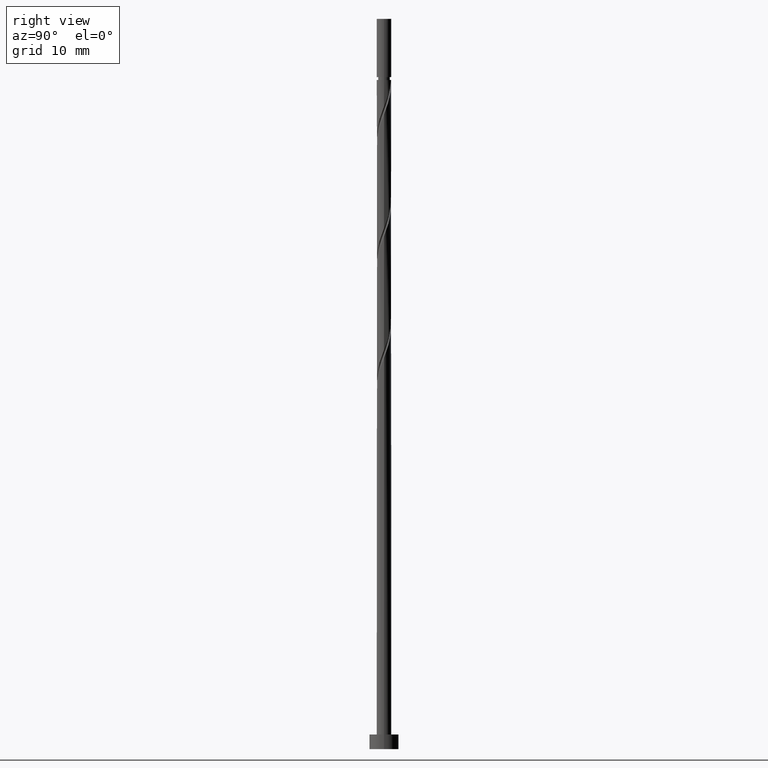
[diagram: clean part render]
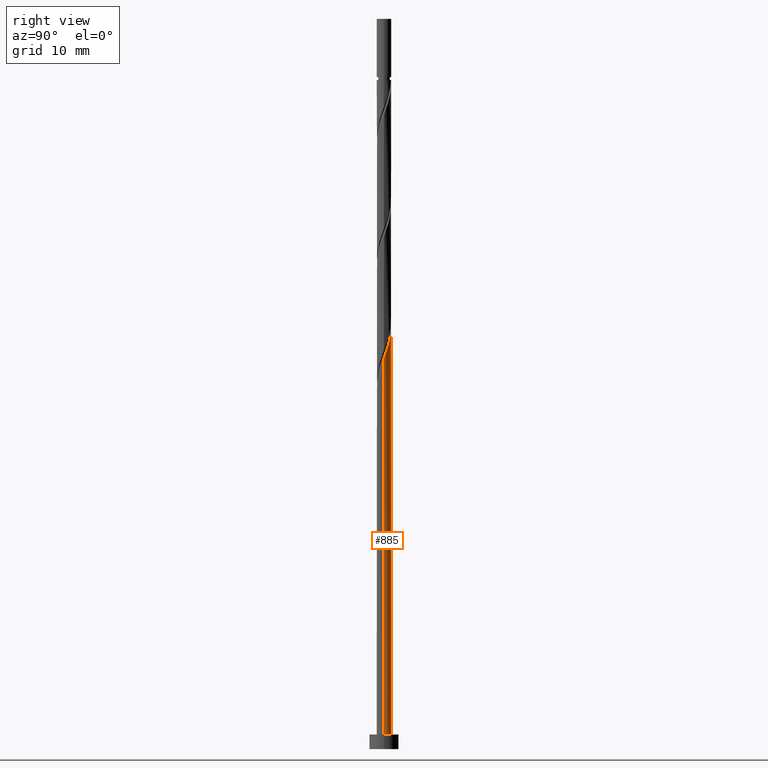
[diagram: same view with one face highlighted and labeled with its STEP entity id]
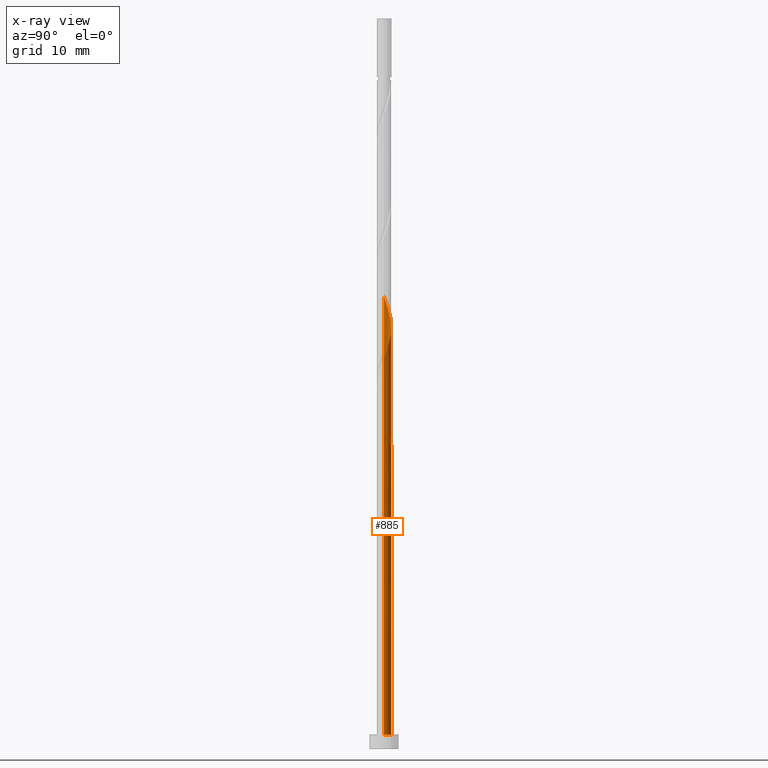
[diagram: x-ray of the same camera — body ghosted, the highlighted face saturated]
A machine part, right view. The second image highlights one B-rep face of the part: STEP entity #885.
The next image is the same camera in x-ray: the body ghosted, the highlighted face saturated — about 0% of this face is hidden behind the body in this view.
In plain terms, the highlighted cylindrical surface (edge-blend (fillet) strip) has radius 1 mm, axis along (-0, -0, -1).
Its self-contained STEP definition (entity closure, byte-faithful):
#6 = CARTESIAN_POINT ( 'NONE',  ( -1.000000000000002887, 0.1630543718204529036, 61.49844641731994699 ) ) ;
#23 = DIRECTION ( 'NONE',  ( -0.000000000000000000, -0.000000000000000000, -1.000000000000000000 ) ) ;
#45 = LINE ( 'NONE', #1069, #339 ) ;
#69 = CARTESIAN_POINT ( 'NONE',  ( 1.000000000000001554, 0.01290167433202154927, 53.62904997028458354 ) ) ;
#75 = EDGE_CURVE ( 'NONE', #539, #1242, #739, .T. ) ;
#78 = ORIENTED_EDGE ( 'NONE', *, *, #765, .F. ) ;
#95 = ORIENTED_EDGE ( 'NONE', *, *, #1343, .F. ) ;
#99 = CARTESIAN_POINT ( 'NONE',  ( -1.000000000000001554, 5.471396497799840470E-16, 61.92836592968554754 ) ) ;
#106 = CARTESIAN_POINT ( 'NONE',  ( 0.000000000000000000, 0.000000000000000000, 2.000000000000000000 ) ) ;
#112 = CARTESIAN_POINT ( 'NONE',  ( -0.5221762109439109789, 0.8528376192009020640, 59.21848007726689644 ) ) ;
#115 = DIRECTION ( 'NONE',  ( 1.000000000000000000, 0.000000000000000000, 0.000000000000000000 ) ) ;
#160 = CARTESIAN_POINT ( 'NONE',  ( -0.7823727769265538257, 0.6228104349834193698, 43.47773933652615597 ) ) ;
#165 = DIRECTION ( 'NONE',  ( 0.000000000000000000, -0.000000000000000000, -1.000000000000000000 ) ) ;
#198 = CARTESIAN_POINT ( 'NONE',  ( -0.4774909380590651731, 0.8786366735297796993, 43.47773933652616307 ) ) ;
#211 = CARTESIAN_POINT ( 'NONE',  ( -0.1989974874213240597, 0.9800000000000013145, 41.62588748467430122 ) ) ;
#301 = CARTESIAN_POINT ( 'NONE',  ( 0.1989974874213245870, 0.9800000000000014255, 41.62588748467430122 ) ) ;
#306 = CARTESIAN_POINT ( 'NONE',  ( 0.8659940141538777780, 0.5302316206861111825, 55.05181341060022504 ) ) ;
#311 = CARTESIAN_POINT ( 'NONE',  ( -0.9996671490029760410, 0.02579905432887760058, 46.25551711430394164 ) ) ;
#314 = AXIS2_PLACEMENT_3D ( 'NONE', #106, #1035, #115 ) ;
#318 = CARTESIAN_POINT ( 'NONE',  ( 0.3225635862758304828, 0.9628312089533872520, 56.90366526245209400 ) ) ;
#336 = AXIS2_PLACEMENT_3D ( 'NONE', #451, #669, #1121 ) ;
#339 = VECTOR ( 'NONE', #1438, 1000.000000000000000 ) ;
#350 = ORIENTED_EDGE ( 'NONE', *, *, #850, .F. ) ;
#362 = CARTESIAN_POINT ( 'NONE',  ( 1.000000000000001554, -5.620786163268778548E-16, 53.59503259635221895 ) ) ;
#388 = CARTESIAN_POINT ( 'NONE',  ( 0.000000000000000000, 0.000000000000000000, 41.62588748467430122 ) ) ;
#401 = VERTEX_POINT ( 'NONE', #608 ) ;
#414 = CARTESIAN_POINT ( 'NONE',  ( 0.9996671490029760410, 0.02579905432887756589, 53.66292452171134642 ) ) ;
#419 =( BOUNDED_CURVE ( )  B_SPLINE_CURVE ( 2, ( #1224, #522, #311, #775, #1111, #426, #420, #1230, #198, #870, #528, #1118, #301 ),
 .UNSPECIFIED., .F., .T. ) 
 B_SPLINE_CURVE_WITH_KNOTS ( ( 3, 2, 2, 2, 2, 2, 3 ),
 ( 0.9295248053855289516, 0.9305555555555555802, 0.9444444444444444198, 0.9583333333333333703, 0.9722222222222222099, 0.9861111111111111605, 1.000000000000000000 ),
 .UNSPECIFIED. ) 
 CURVE ( )  GEOMETRIC_REPRESENTATION_ITEM ( )  RATIONAL_B_SPLINE_CURVE ( ( 0.9071930855141220329, 0.9080659294509697554, 0.9090909090909099488, 0.8952797754656446338, 0.9090909090909099488, 0.8952797754656446338, 0.9090909090909099488, 0.8952797754656446338, 0.9090909090909099488, 0.8952797754656446338, 0.9090909090909099488, 0.8952797754656446338, 0.9090909090909099488 ) ) 
 REPRESENTATION_ITEM ( '' )  );
#420 = CARTESIAN_POINT ( 'NONE',  ( -0.7492061519980889317, 0.6623368793961420531, 44.40366526245207979 ) ) ;
#424 = VERTEX_POINT ( 'NONE', #555 ) ;
#426 = CARTESIAN_POINT ( 'NONE',  ( -0.8659940141538774450, 0.5302316206861116266, 44.86662822541504170 ) ) ;
#431 = CARTESIAN_POINT ( 'NONE',  ( 0.1481832699744014548, 0.9889599175394807595, 57.36662822541504170 ) ) ;
#451 = CARTESIAN_POINT ( 'NONE',  ( 0.000000000000000000, 0.000000000000000000, 100.0000000000000000 ) ) ;
#471 = CARTESIAN_POINT ( 'NONE',  ( -1.000000000000001554, 5.471396497799840470E-16, 45.26169926301888324 ) ) ;
#498 = CARTESIAN_POINT ( 'NONE',  ( -0.8921910604809059064, 0.4848570054394629181, 43.94070229948913919 ) ) ;
#522 = CARTESIAN_POINT ( 'NONE',  ( -1.000000000000001332, 0.01290167433201954567, 46.28939166573071162 ) ) ;
#525 = VERTEX_POINT ( 'NONE', #362 ) ;
#528 = CARTESIAN_POINT ( 'NONE',  ( -0.1481832699744007331, 0.9889599175394806485, 42.55181341060022504 ) ) ;
#529 = VECTOR ( 'NONE', #23, 1000.000000000000000 ) ;
#539 = VERTEX_POINT ( 'NONE', #589 ) ;
#554 = CARTESIAN_POINT ( 'NONE',  ( -0.02619704632702836086, 1.015088626125574489, 57.82959118837801782 ) ) ;
#555 = CARTESIAN_POINT ( 'NONE',  ( -1.000000000000000000, 0.000000000000000000, 2.000000000000000000 ) ) ;
#567 = CARTESIAN_POINT ( 'NONE',  ( -0.1989974874213240874, 0.9800000000000013145, 58.29255415134096552 ) ) ;
#577 = CARTESIAN_POINT ( 'NONE',  ( -0.6725544933722017449, 0.7607638645273760991, 59.68144304022985835 ) ) ;
#587 = CARTESIAN_POINT ( 'NONE',  ( 0.1989974874213245870, 0.9800000000000015365, 41.62588748467430122 ) ) ;
#589 = CARTESIAN_POINT ( 'NONE',  ( -0.1989974874213240874, 0.9800000000000013145, 41.62588748467430122 ) ) ;
#593 = EDGE_CURVE ( 'NONE', #525, #401, #1082, .T. ) ;
#602 = ORIENTED_EDGE ( 'NONE', *, *, #593, .T. ) ;
#608 = CARTESIAN_POINT ( 'NONE',  ( 1.000000000000000000, 1.224646799147353207E-16, 2.000000000000000000 ) ) ;
#619 = DIRECTION ( 'NONE',  ( -1.000000000000000000, 0.000000000000000000, 0.000000000000000000 ) ) ;
#647 = CARTESIAN_POINT ( 'NONE',  ( 0.6324182898423008625, 0.7944421381061724796, 55.97773933652615597 ) ) ;
#662 = CYLINDRICAL_SURFACE ( 'NONE', #336, 1.000000000000000000 ) ;
#669 = DIRECTION ( 'NONE',  ( -0.000000000000000000, -0.000000000000000000, -1.000000000000000000 ) ) ;
#681 = CARTESIAN_POINT ( 'NONE',  ( -1.000000000000001554, 5.471396497799840470E-16, 61.92836592968554754 ) ) ;
#739 = CIRCLE ( 'NONE', #770, 1.000000000000000000 ) ;
#765 = EDGE_CURVE ( 'NONE', #539, #1257, #1458, .T. ) ;
#770 = AXIS2_PLACEMENT_3D ( 'NONE', #388, #165, #619 ) ;
#774 = VECTOR ( 'NONE', #1315, 1000.000000000000000 ) ;
#775 = CARTESIAN_POINT ( 'NONE',  ( -0.9951180796480316726, 0.2020673444260115970, 45.79255415134096552 ) ) ;
#810 = CARTESIAN_POINT ( 'NONE',  ( -0.7823727769265538257, 0.6228104349834193698, 60.14440600319284158 ) ) ;
#850 = EDGE_CURVE ( 'NONE', #1257, #424, #45, .T. ) ;
#851 = CARTESIAN_POINT ( 'NONE',  ( -1.000000000000003553, 0.1630543718204517378, 44.83177975065327558 ) ) ;
#870 = CARTESIAN_POINT ( 'NONE',  ( -0.3225635862758298167, 0.9628312089533871410, 43.01477637356319406 ) ) ;
#876 = CARTESIAN_POINT ( 'NONE',  ( 0.9951180796480316726, 0.2020673444260113749, 54.12588748467431543 ) ) ;
#885 = ADVANCED_FACE ( 'NONE', ( #1365 ), #662, .T. ) ;
#887 = CARTESIAN_POINT ( 'NONE',  ( 0.7492061519980889317, 0.6623368793961418310, 55.51477637356318695 ) ) ;
#956 = CARTESIAN_POINT ( 'NONE',  ( -1.000000000000000000, 0.000000000000000000, 100.0000000000000000 ) ) ;
#958 = CARTESIAN_POINT ( 'NONE',  ( -0.9482036394194132134, 0.3176631206038596500, 44.40366526245209400 ) ) ;
#1006 = CARTESIAN_POINT ( 'NONE',  ( -0.3717979285156202685, 0.9449113738744286950, 42.08885044763726313 ) ) ;
#1017 = EDGE_CURVE ( 'NONE', #401, #424, #1228, .T. ) ;
#1032 = CARTESIAN_POINT ( 'NONE',  ( -0.8921910604809059064, 0.4848570054394629181, 60.60736896615579639 ) ) ;
#1035 = DIRECTION ( 'NONE',  ( 0.000000000000000000, 0.000000000000000000, 1.000000000000000000 ) ) ;
#1069 = CARTESIAN_POINT ( 'NONE',  ( -1.000000000000000000, 0.000000000000000000, 100.0000000000000000 ) ) ;
#1081 = LINE ( 'NONE', #956, #529 ) ;
#1082 = LINE ( 'NONE', #1324, #774 ) ;
#1111 = CARTESIAN_POINT ( 'NONE',  ( -0.9305560469009542812, 0.3661494825560615562, 45.32959118837801071 ) ) ;
#1118 = CARTESIAN_POINT ( 'NONE',  ( 0.02619704632702840250, 1.015088626125574045, 42.08885044763726313 ) ) ;
#1121 = DIRECTION ( 'NONE',  ( -1.000000000000000000, 0.000000000000000000, 0.000000000000000000 ) ) ;
#1149 = CARTESIAN_POINT ( 'NONE',  ( -1.000000000000001554, 5.471396497799840470E-16, 45.26169926301888324 ) ) ;
#1150 = CARTESIAN_POINT ( 'NONE',  ( -0.9482036394194132134, 0.3176631206038596500, 61.07033192911875830 ) ) ;
#1151 = EDGE_CURVE ( 'NONE', #1467, #1279, #1081, .T. ) ;
#1164 = EDGE_LOOP ( 'NONE', ( #1311, #602, #1350, #350, #78, #1263, #95, #1417 ) ) ;
#1179 = CARTESIAN_POINT ( 'NONE',  ( -1.000000000000001332, -4.313626590415574556E-16, 46.32340903966308332 ) ) ;
#1189 = CARTESIAN_POINT ( 'NONE',  ( -0.6725544933722017449, 0.7607638645273760991, 43.01477637356320116 ) ) ;
#1193 =( BOUNDED_CURVE ( )  B_SPLINE_CURVE ( 2, ( #1456, #69, #414, #876, #1339, #306, #887, #647, #1353, #318, #431, #554, #567, #1360, #112, #577, #810, #1032, #1150, #6, #681 ),
 .UNSPECIFIED., .F., .T. ) 
 B_SPLINE_CURVE_WITH_KNOTS ( ( 3, 2, 2, 2, 2, 2, 2, 2, 2, 2, 3 ),
 ( 0.1795248053855291182, 0.1805555555555555802, 0.1944444444444444198, 0.2083333333333333703, 0.2222222222222222099, 0.2361111111111111605, 0.2500000000000000000, 0.2638888888888888395, 0.2777777777777777901, 0.2916666666666666297, 0.3045248053855293957 ),
 .UNSPECIFIED. ) 
 CURVE ( )  GEOMETRIC_REPRESENTATION_ITEM ( )  RATIONAL_B_SPLINE_CURVE ( ( 0.9071930855141224770, 0.9080659294509700885, 0.9090909090909101709, 0.8952797754656445228, 0.9090909090909101709, 0.8952797754656445228, 0.9090909090909101709, 0.8952797754656445228, 0.9090909090909101709, 0.8952797754656445228, 0.9090909090909101709, 0.8952797754656445228, 0.9090909090909101709, 0.8952797754656445228, 0.9090909090909101709, 0.8952797754656445228, 0.9090909090909101709, 0.8952797754656445228, 0.9090909090909101709, 0.8963047551055842721, 0.9071930855141229211 ) ) 
 REPRESENTATION_ITEM ( '' )  );
#1224 = CARTESIAN_POINT ( 'NONE',  ( -1.000000000000001332, -4.313626590415574556E-16, 46.32340903966308332 ) ) ;
#1228 = CIRCLE ( 'NONE', #314, 1.000000000000000000 ) ;
#1230 = CARTESIAN_POINT ( 'NONE',  ( -0.6324182898423004184, 0.7944421381061723686, 43.94070229948912498 ) ) ;
#1242 = VERTEX_POINT ( 'NONE', #587 ) ;
#1257 = VERTEX_POINT ( 'NONE', #471 ) ;
#1263 = ORIENTED_EDGE ( 'NONE', *, *, #75, .T. ) ;
#1279 = VERTEX_POINT ( 'NONE', #1179 ) ;
#1311 = ORIENTED_EDGE ( 'NONE', *, *, #1424, .F. ) ;
#1315 = DIRECTION ( 'NONE',  ( -0.000000000000000000, -0.000000000000000000, -1.000000000000000000 ) ) ;
#1324 = CARTESIAN_POINT ( 'NONE',  ( 1.000000000000000000, 1.224646799147353207E-16, 100.0000000000000000 ) ) ;
#1339 = CARTESIAN_POINT ( 'NONE',  ( 0.9305560469009547253, 0.3661494825560612232, 54.58885044763727024 ) ) ;
#1343 = EDGE_CURVE ( 'NONE', #1279, #1242, #419, .T. ) ;
#1350 = ORIENTED_EDGE ( 'NONE', *, *, #1017, .T. ) ;
#1353 = CARTESIAN_POINT ( 'NONE',  ( 0.4774909380590655616, 0.8786366735297795882, 56.44070229948911788 ) ) ;
#1360 = CARTESIAN_POINT ( 'NONE',  ( -0.3717979285156202685, 0.9449113738744286950, 58.75551711430394164 ) ) ;
#1365 = FACE_OUTER_BOUND ( 'NONE', #1164, .T. ) ;
#1417 = ORIENTED_EDGE ( 'NONE', *, *, #1151, .F. ) ;
#1424 = EDGE_CURVE ( 'NONE', #525, #1467, #1193, .T. ) ;
#1438 = DIRECTION ( 'NONE',  ( -0.000000000000000000, -0.000000000000000000, -1.000000000000000000 ) ) ;
#1456 = CARTESIAN_POINT ( 'NONE',  ( 1.000000000000001554, -5.620786163268778548E-16, 53.59503259635221895 ) ) ;
#1458 =( BOUNDED_CURVE ( )  B_SPLINE_CURVE ( 2, ( #211, #1006, #1478, #1189, #160, #498, #958, #851, #1149 ),
 .UNSPECIFIED., .F., .T. ) 
 B_SPLINE_CURVE_WITH_KNOTS ( ( 3, 2, 2, 2, 3 ),
 ( 0.000000000000000000, 0.01388888888888884128, 0.02777777777777779011, 0.04166666666666662966, 0.05452480538552949285 ),
 .UNSPECIFIED. ) 
 CURVE ( )  GEOMETRIC_REPRESENTATION_ITEM ( )  RATIONAL_B_SPLINE_CURVE ( ( 0.9090909090909101709, 0.8952797754656445228, 0.9090909090909101709, 0.8952797754656445228, 0.9090909090909101709, 0.8952797754656445228, 0.9090909090909101709, 0.8963047551055841611, 0.9071930855141231431 ) ) 
 REPRESENTATION_ITEM ( '' )  );
#1467 = VERTEX_POINT ( 'NONE', #99 ) ;
#1478 = CARTESIAN_POINT ( 'NONE',  ( -0.5221762109439109789, 0.8528376192009020640, 42.55181341060021794 ) ) ;